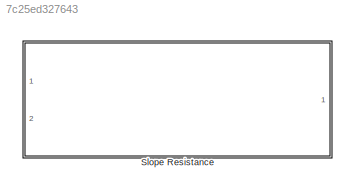
MODEL slx_7c25ed327643
KIND library
CONFIG AbsTol = auto
CONFIG EnableMultiTasking = off
CONFIG FixedStep = auto
CONFIG MaxStep = auto
CONFIG MinStep = auto
CONFIG RelTol = 1e-3
CONFIG SampleTimeConstraint = Unconstrained
CONFIG Solver = VariableStepAuto
CONFIG SolverName = VariableStepAuto
CONFIG StartTime = 0.0
CONFIG StopTime = 10.0
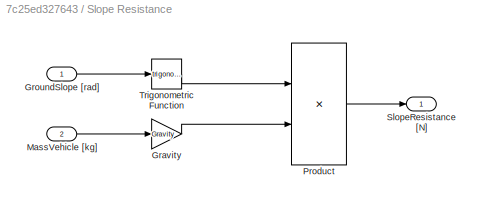
BLOCK [SubSystem] Slope Resistance
  Ports = [2, 1]
  RequestExecContextInheritance = off
BLOCK [Gain] Slope Resistance/Gravity
  Gain = Gravity
  OutDataTypeStr = Inherit: Inherit via internal rule
  ParamDataTypeStr = Inherit: Inherit via internal rule
  SaturateOnIntegerOverflow = off
BLOCK [Inport] Slope Resistance/GroundSlope [rad]
  IconDisplay = Port number
  SampleTime = LocalSampleTime
BLOCK [Inport] Slope Resistance/MassVehicle [kg]
  IconDisplay = Port number
  Port = 2
  SampleTime = LocalSampleTime
BLOCK [Product] Slope Resistance/Product
  InputSameDT = off
  OutDataTypeStr = Inherit: Inherit via internal rule
  Ports = [2, 1]
  RndMeth = Floor
  SaturateOnIntegerOverflow = off
BLOCK [Outport] Slope Resistance/SlopeResistance [N]
  IconDisplay = Port number
  SampleTime = GlobalSampleTime
BLOCK [Trigonometry] Slope Resistance/Trigonometric Function
  Ports = [1, 1]
LINE Slope Resistance/Gravity:1 -> Slope Resistance/Product:2
LINE Slope Resistance/GroundSlope [rad]:1 -> Slope Resistance/Trigonometric Function:1
LINE Slope Resistance/MassVehicle [kg]:1 -> Slope Resistance/Gravity:1
LINE Slope Resistance/Product:1 -> Slope Resistance/SlopeResistance [N]:1
LINE Slope Resistance/Trigonometric Function:1 -> Slope Resistance/Product:1
